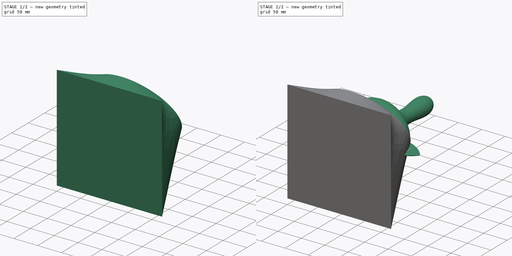
[diagram: build sequence overview — one tinted view per stage of 2, left to right]
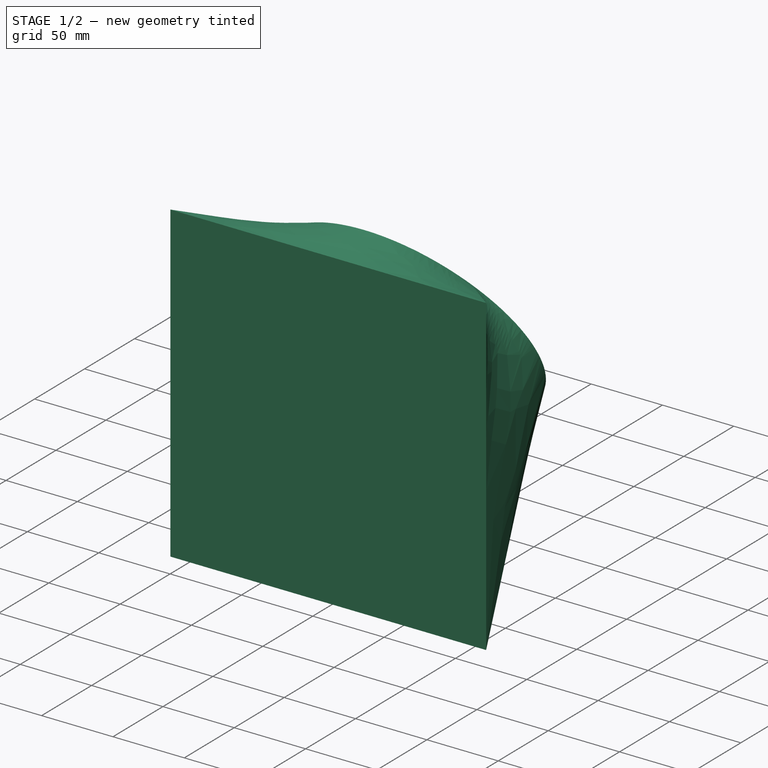
[diagram: stage 1 of 2 — iso view after this stage's code; geometry added in this stage tinted green]
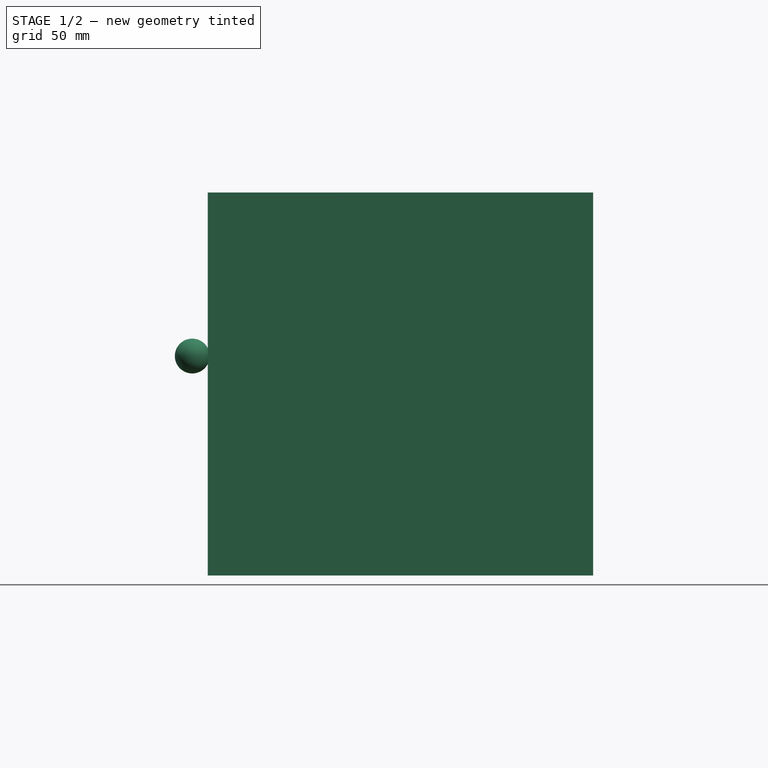
[diagram: stage 1 of 2 — front view after this stage's code; geometry added in this stage tinted green]
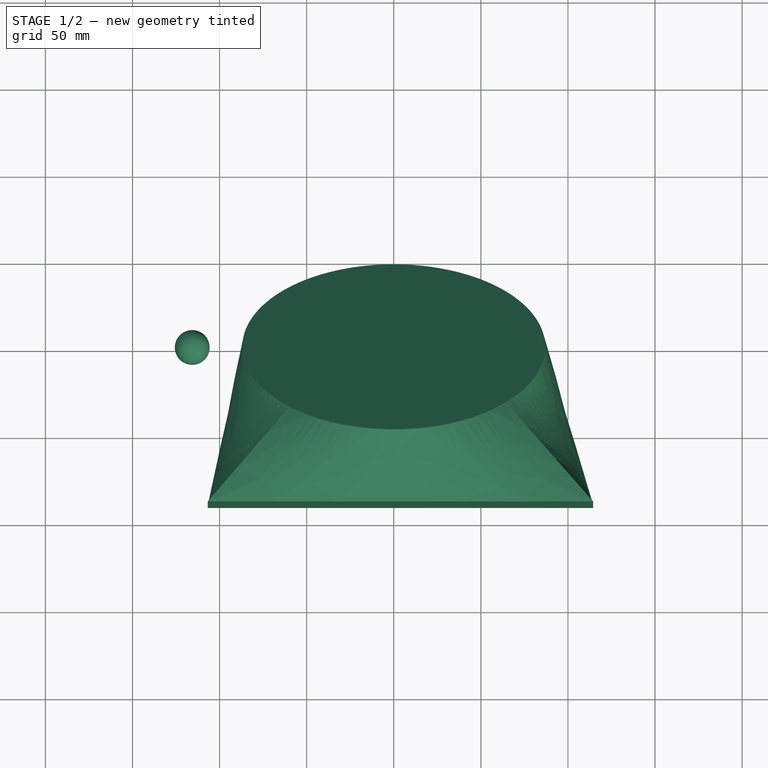
[diagram: stage 1 of 2 — top view after this stage's code; geometry added in this stage tinted green]
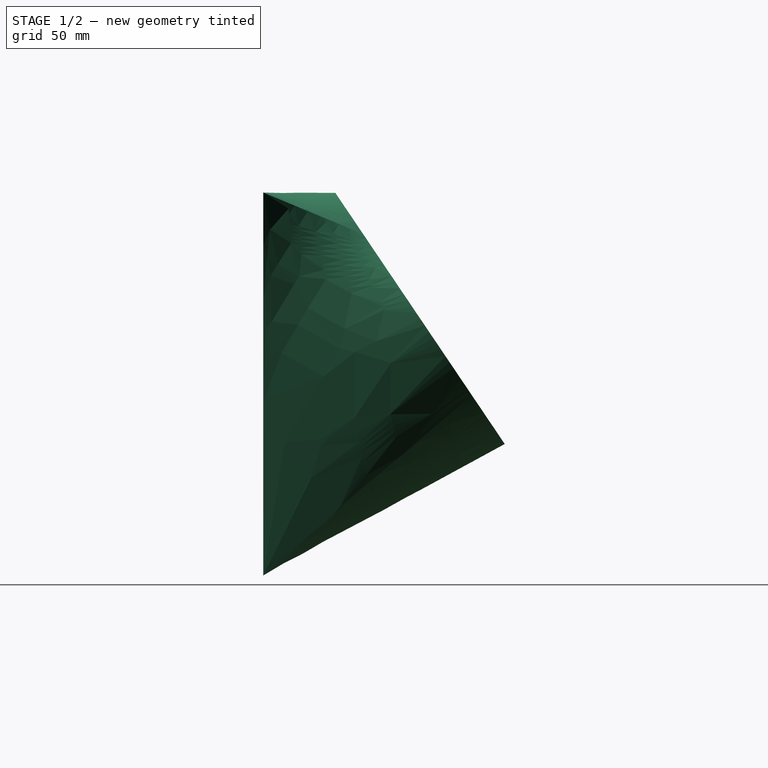
[diagram: stage 1 of 2 — right view after this stage's code; geometry added in this stage tinted green]
FCSTD DOCUMENT  (FreeCAD 0.21RUnknown)
Label: part11
License: All rights reserved
LicenseURL: http://en.wikipedia.org/wiki/All_rights_reserved
objects: Sketcher::SketchObject×14, Part::Loft×3, Part::RuledSurface×2, Part::Compound×1, Part::Feature×1, Part::Sphere×1, Part::Cut×1
note: 23 computed .brp shape members not serialized (recipe doc carries the construction recipe); baked Part::Feature solids carry a one-line shape summary decoded from their .brp

FEATURE [Sketcher::SketchObject] Sketch006
  FullyConstrained = false
  sketch-geometry (4):
    g0: LineSegment StartX=-114.842 StartY=0 StartZ=0 EndX=-64.8417 EndY=0 EndZ=0
    g1: LineSegment StartX=-64.8417 StartY=0 StartZ=0 EndX=-14.8417 EndY=0 EndZ=0
    g2: LineSegment StartX=-14.8417 StartY=0 StartZ=0 EndX=60.1583 EndY=0 EndZ=0
    g3: LineSegment StartX=60.1583 StartY=0 StartZ=0 EndX=110.158 EndY=0 EndZ=0
  constraints (12):
    c: PointOnObject(g0,g-1)
    c: PointOnObject(g0,g-1)
    c: Coincident(g0,g1)
    c: PointOnObject(g1,g-1)
    c: Coincident(g1,g2)
    c: PointOnObject(g2,g-1)
    c: Coincident(g2,g3)
    c: PointOnObject(g3,g-1)
    c: DistanceX(g0,g0) = 50
    c: DistanceX(g1,g1) = 50
    c: DistanceX(g2,g2) = 75
    c: DistanceX(g3,g3) = 50
FEATURE [Sketcher::SketchObject] Sketch007
  FullyConstrained = false
  MapMode = 7
  Placement = pos=(-114.842,0,0) rot=(0.57735,-0.57735,-0.57735;2.0944rad)
  Support = -> [Sketch006]
  sketch-geometry (1):
    g0: ArcOfCircle CenterX=0 CenterY=51.9379 CenterZ=0 NormalX=0 NormalY=0 NormalZ=1 AngleXU=0 Radius=70.6886 StartAngle=3.59224 EndAngle=5.83253
  constraints (1):
    c: PointOnObject(g0,g-2)
FEATURE [Sketcher::SketchObject] Sketch008
  FullyConstrained = false
  MapMode = 7
  Placement = pos=(-64.8417,0,0) rot=(0.57735,-0.57735,-0.57735;2.0944rad)
  Support = -> [Sketch006]
  sketch-geometry (1):
    g0: ArcOfCircle CenterX=0 CenterY=51.9379 CenterZ=0 NormalX=0 NormalY=0 NormalZ=1 AngleXU=0 Radius=70.6886 StartAngle=3.59224 EndAngle=5.83253
  constraints (1):
    c: PointOnObject(g0,g-2)
FEATURE [Sketcher::SketchObject] Sketch009
  FullyConstrained = false
  MapMode = 7
  Placement = pos=(-14.8417,0,0) rot=(0.57735,-0.57735,-0.57735;2.0944rad)
  Support = -> [Sketch006]
  sketch-geometry (1):
    g0: ArcOfCircle CenterX=0 CenterY=51.9379 CenterZ=0 NormalX=0 NormalY=0 NormalZ=1 AngleXU=0 Radius=61.1035 StartAngle=3.85008 EndAngle=5.5747
  constraints (1):
    c: PointOnObject(g0,g-2)
FEATURE [Sketcher::SketchObject] Sketch010
  FullyConstrained = false
  MapMode = 7
  Placement = pos=(60.1583,0,0) rot=(0.57735,-0.57735,-0.57735;2.0944rad)
  Support = -> [Sketch006]
  sketch-geometry (1):
    g0: ArcOfCircle CenterX=0 CenterY=52.8859 CenterZ=0 NormalX=0 NormalY=0 NormalZ=1 AngleXU=0 Radius=58.2909 StartAngle=4.14785 EndAngle=5.27693
  constraints (1):
    c: PointOnObject(g0,g-2)
FEATURE [Sketcher::SketchObject] Sketch011
  FullyConstrained = true
  Placement = pos=(114,0,0) rot=(0.57735,0.57735,0.57735;2.0944rad)
  sketch-geometry (1):
    g0: GeomPoint X=0 Y=0 Z=0
  constraints (1):
    c: Coincident(g0,g-1)
FEATURE [Part::Loft] Loft001
  Closed = false
  MaxDegree = 5
  Ruled = false
  Sections = -> [Sketch007,Sketch008,Sketch009,Sketch010,Sketch011]
  Solid = false
FEATURE [Part::RuledSurface] Ruled_Surface
  Curve1 = -> Loft001 [Edge4]
  Curve2 = -> Loft001 [Edge2]
  Orientation = 0
FEATURE [Part::RuledSurface] Ruled_Surface001
  Curve1 = -> Ruled_Surface [Edge2]
  Curve2 = -> Sketch007 [Edge1]
  Orientation = 0
FEATURE [Part::Compound] Compound
  Links = -> [Ruled_Surface,Ruled_Surface001,Loft001]
FEATURE [Part::Feature] Compound_solid  label="Compound (Solid)"
  shape: bbox 228.8 x 180 x 75.55 mm, 3 faces (baked)
FEATURE [Part::Sphere] Sphere
  Angle1 = -90
  Angle2 = 90
  Angle3 = 360
  AttacherType = Attacher::AttachEngine3D
  Placement = pos=(-115.7,0,18.4) rot=(0,0,1;0rad)
  Radius = 10
FEATURE [Sketcher::SketchObject] Sketch012
  FullyConstrained = false
  Placement = pos=(0,0,40) rot=(1,0,0;2.16421rad)
  sketch-geometry (4):
    g0: ArcOfCircle CenterX=0 CenterY=0 CenterZ=0 NormalX=0 NormalY=0 NormalZ=1 AngleXU=0 Radius=86.974 StartAngle=0.73877 EndAngle=2.33006
    g1: ArcOfCircle CenterX=0 CenterY=0 CenterZ=0 NormalX=0 NormalY=0 NormalZ=1 AngleXU=0 Radius=86.974 StartAngle=2.33006 EndAngle=3.80016
    g2: ArcOfCircle CenterX=0 CenterY=0 CenterZ=0 NormalX=0 NormalY=0 NormalZ=1 AngleXU=0 Radius=86.974 StartAngle=3.80016 EndAngle=5.62969
    g3: ArcOfCircle CenterX=0 CenterY=0 CenterZ=0 NormalX=0 NormalY=0 NormalZ=1 AngleXU=0 Radius=86.974 StartAngle=5.62969 EndAngle=7.02195
  constraints (7):
    c: Coincident(g0,g-1)
    c: Coincident(g0,g1)
    c: Coincident(g0,g1)
    c: Coincident(g1,g2)
    c: Coincident(g1,g2)
    c: Coincident(g2,g3)
    c: Coincident(g2,g3)
FEATURE [Sketcher::SketchObject] Sketch013
  FullyConstrained = false
  Placement = pos=(0,-90,0) rot=(1,0,0;1.5708rad)
  sketch-geometry (4):
    g0: LineSegment StartX=-106.754 StartY=112.276 StartZ=0 EndX=114.493 EndY=112.276 EndZ=0
    g1: LineSegment StartX=114.493 StartY=112.276 StartZ=0 EndX=114.493 EndY=-107.577 EndZ=0
    g2: LineSegment StartX=114.493 StartY=-107.577 StartZ=0 EndX=-106.754 EndY=-107.577 EndZ=0
    g3: LineSegment StartX=-106.754 StartY=-107.577 StartZ=0 EndX=-106.754 EndY=112.276 EndZ=0
  constraints (8):
    c: Coincident(g0,g1)
    c: Coincident(g1,g2)
    c: Coincident(g2,g3)
    c: Coincident(g3,g0)
    c: Horizontal(g0)
    c: Horizontal(g2)
    c: Vertical(g1)
    c: Vertical(g3)
FEATURE [Part::Loft] Loft002
  Closed = false
  MaxDegree = 5
  Ruled = false
  Sections = -> [Sketch012,Sketch013]
  Solid = true
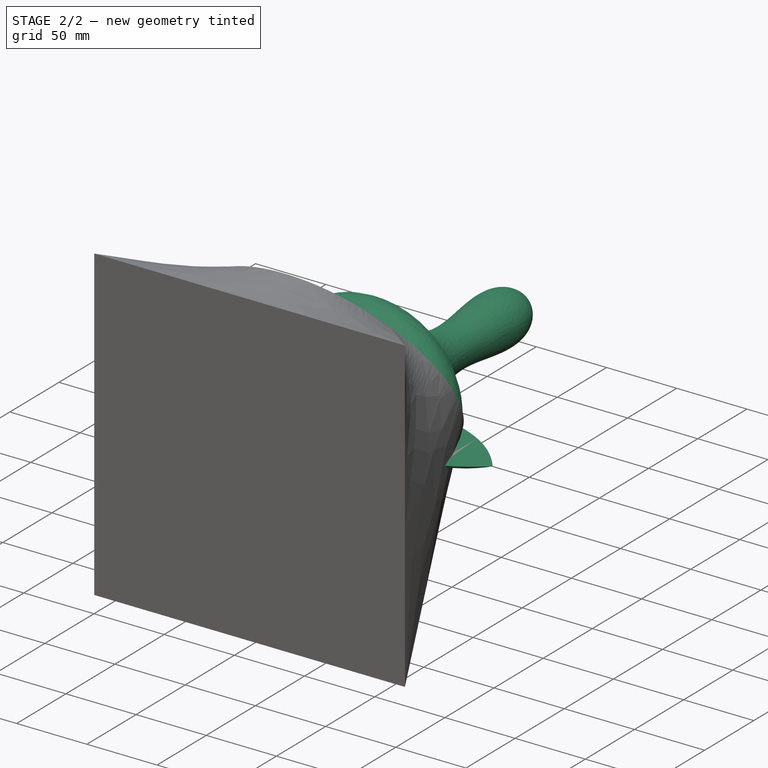
[diagram: stage 2 of 2 — iso view after this stage's code; geometry added in this stage tinted green]
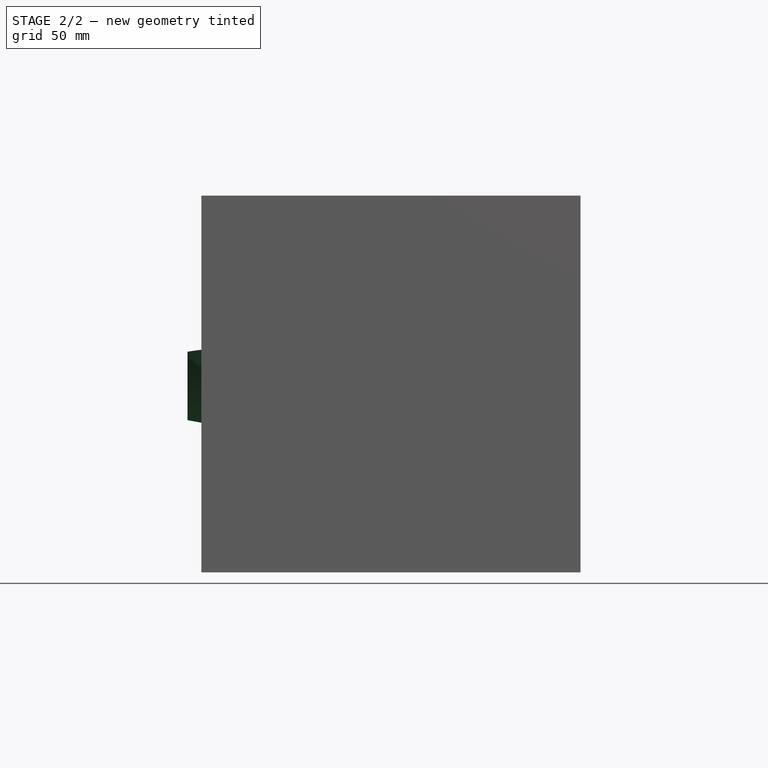
[diagram: stage 2 of 2 — front view after this stage's code; geometry added in this stage tinted green]
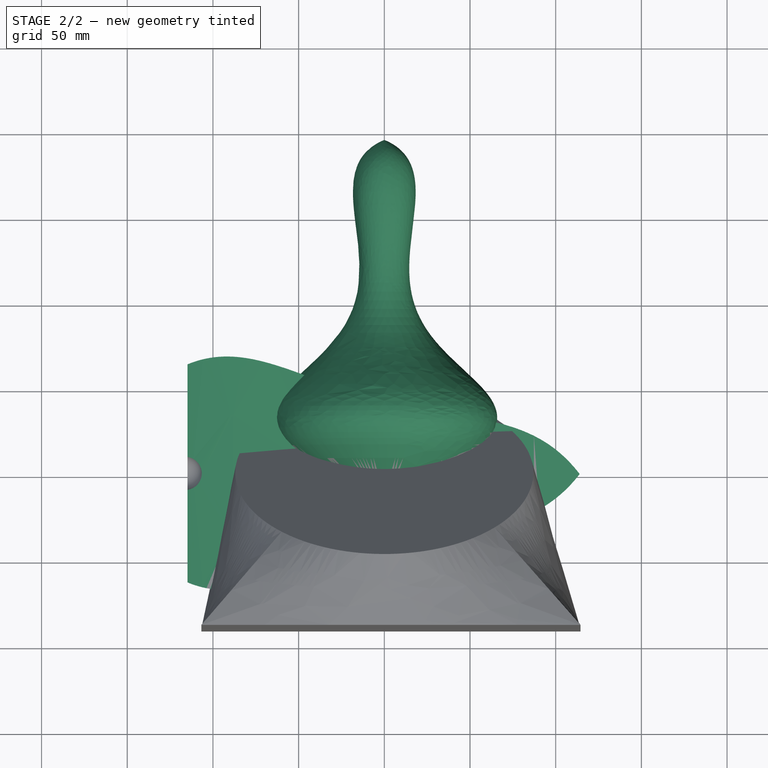
[diagram: stage 2 of 2 — top view after this stage's code; geometry added in this stage tinted green]
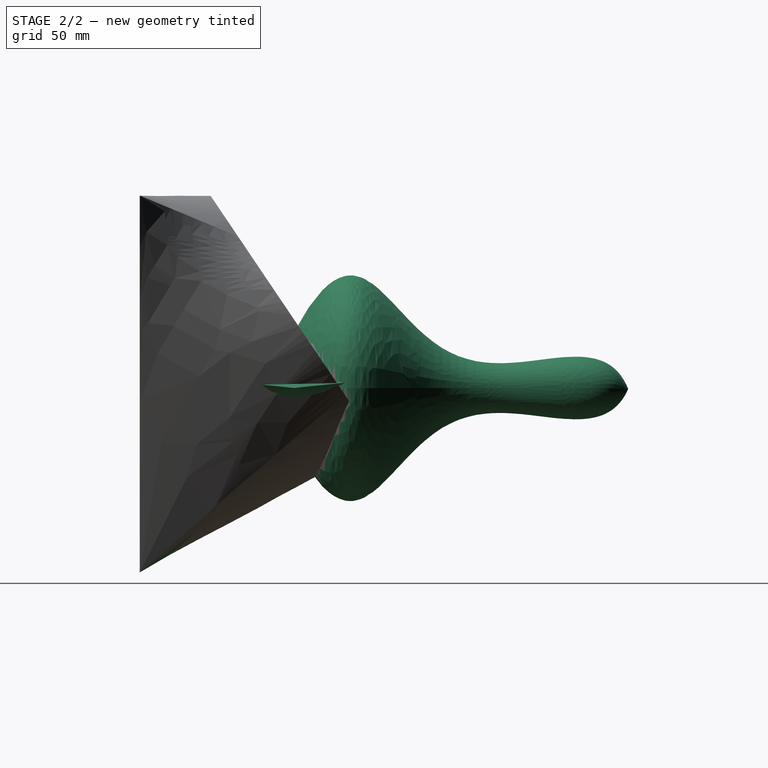
[diagram: stage 2 of 2 — right view after this stage's code; geometry added in this stage tinted green]
FEATURE [Sketcher::SketchObject] Sketch
  FullyConstrained = false
  Placement = pos=(0,0,0) rot=(1,0,0;1.5708rad)
  sketch-geometry (1):
    g0: Circle CenterX=0 CenterY=0 CenterZ=0 NormalX=0 NormalY=0 NormalZ=1 AngleXU=0 Radius=32.7099
  constraints (1):
    c: Coincident(g0,g-1)
FEATURE [Sketcher::SketchObject] Sketch001
  FullyConstrained = false
  Placement = pos=(0,50,0) rot=(1,0,0;1.5708rad)
  sketch-geometry (1):
    g0: Circle CenterX=0 CenterY=0 CenterZ=0 NormalX=0 NormalY=0 NormalZ=1 AngleXU=0 Radius=57.3975
  constraints (1):
    c: Coincident(g0,g-1)
FEATURE [Sketcher::SketchObject] Sketch002
  FullyConstrained = false
  Placement = pos=(0,100,0) rot=(1,0,0;1.5708rad)
  sketch-geometry (1):
    g0: Circle CenterX=0 CenterY=0 CenterZ=0 NormalX=0 NormalY=0 NormalZ=1 AngleXU=0 Radius=17.2738
  constraints (1):
    c: Coincident(g0,g-1)
FEATURE [Sketcher::SketchObject] Sketch003
  FullyConstrained = false
  Placement = pos=(0,150,0) rot=(1,0,0;1.5708rad)
  sketch-geometry (1):
    g0: Circle CenterX=0 CenterY=0 CenterZ=0 NormalX=0 NormalY=0 NormalZ=1 AngleXU=0 Radius=17.2738
  constraints (1):
    c: Coincident(g0,g-1)
FEATURE [Sketcher::SketchObject] Sketch004
  FullyConstrained = false
  Placement = pos=(0,175,0) rot=(1,0,0;1.5708rad)
  sketch-geometry (1):
    g0: Circle CenterX=0 CenterY=0 CenterZ=0 NormalX=0 NormalY=0 NormalZ=1 AngleXU=0 Radius=17.2738
  constraints (1):
    c: Coincident(g0,g-1)
FEATURE [Sketcher::SketchObject] Sketch005
  FullyConstrained = false
  Placement = pos=(0,195,0) rot=(1,0,0;1.5708rad)
  sketch-geometry (1):
    g0: GeomPoint X=0 Y=-0.467141 Z=0
  constraints (1):
    c: PointOnObject(g0,g-2)
FEATURE [Part::Loft] Loft
  Closed = false
  MaxDegree = 6
  Ruled = false
  Sections = -> [Sketch,Sketch001,Sketch002,Sketch003,Sketch004,Sketch005]
  Solid = true
FEATURE [Part::Cut] Cut
  Base = -> Compound_solid
  Tool = -> Sphere
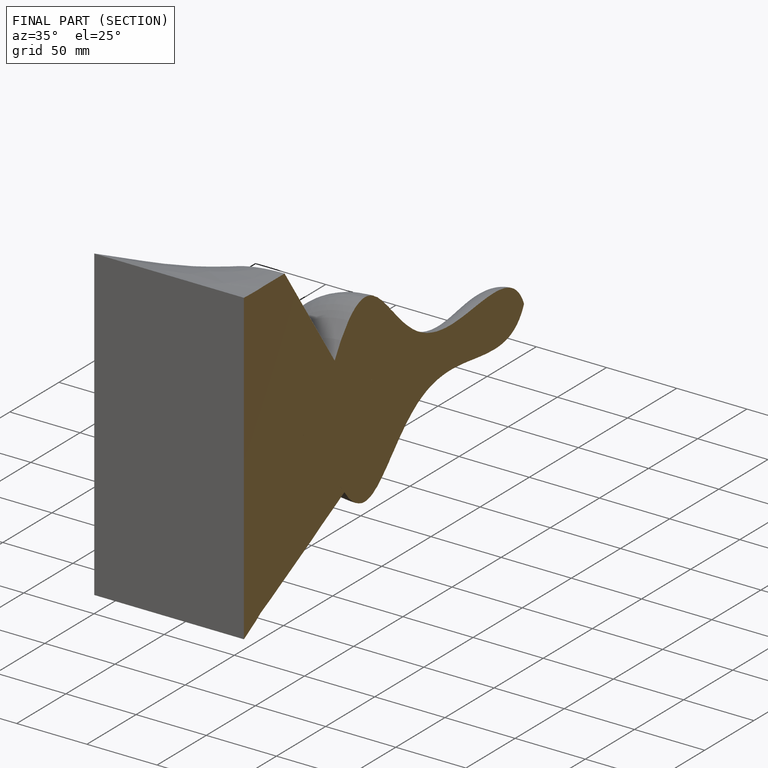
[diagram: finished part — half-section view (interior)]
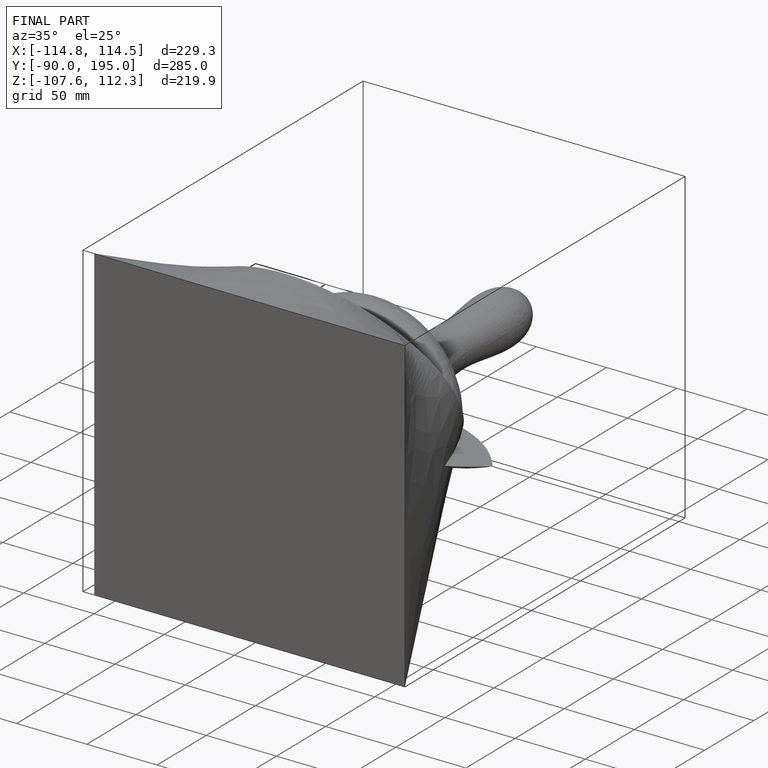
[diagram: finished part — iso view with bounding-box wireframe]
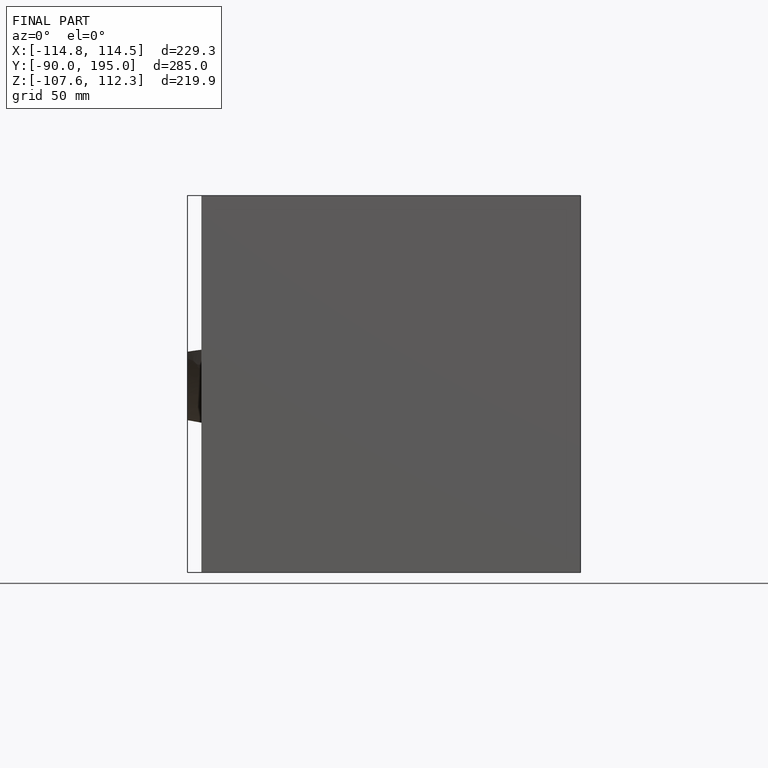
[diagram: finished part — front view with bounding-box wireframe]
